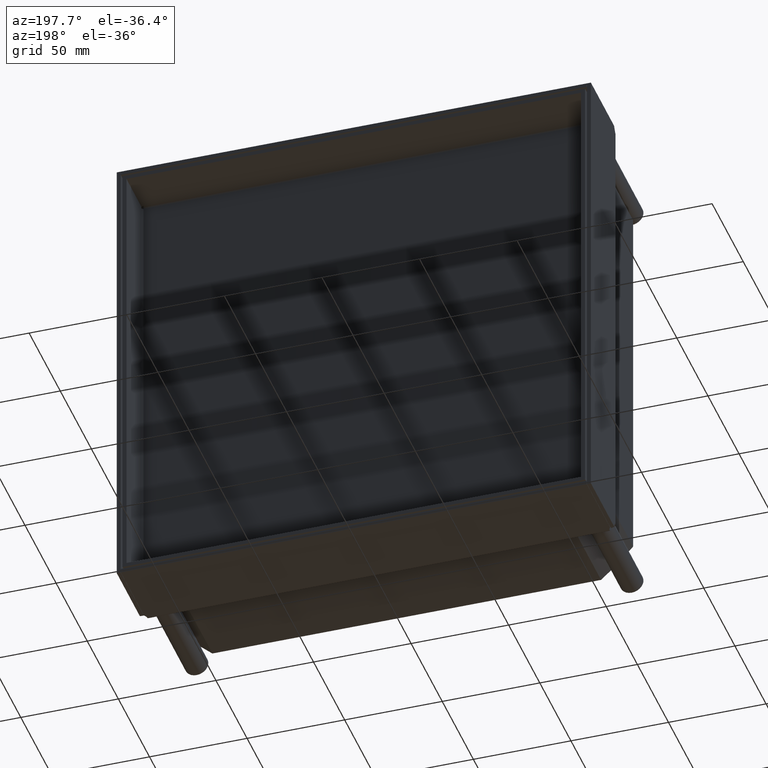
[diagram: clean part render]
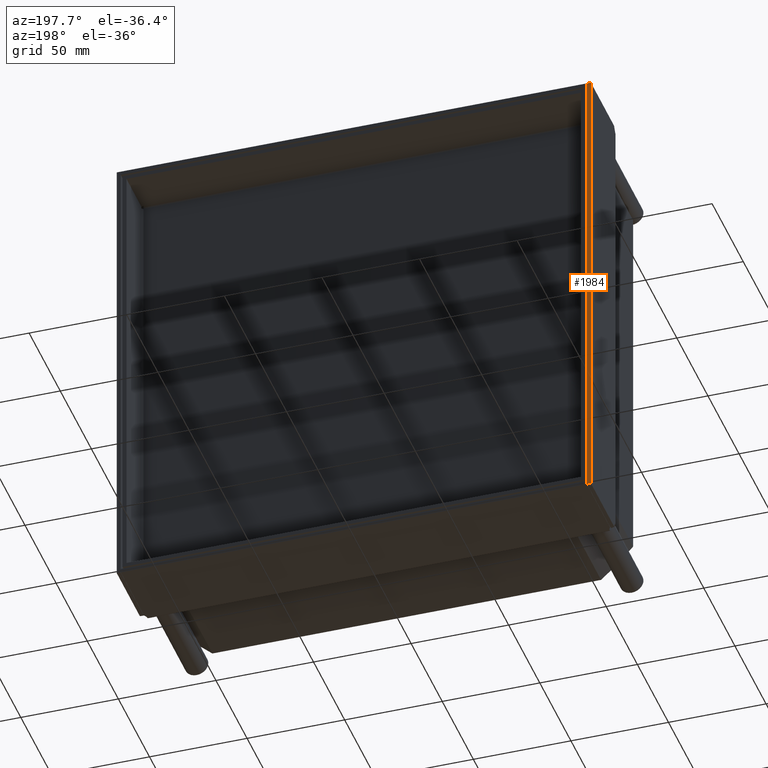
[diagram: same view with one face highlighted and labeled with its STEP entity id]
A machine part, auxiliary view. The second image highlights one B-rep face of the part: STEP entity #1984.
In plain terms, the highlighted planar face has unit normal (0, 1, 0).
Its self-contained STEP definition (entity closure, byte-faithful):
#1017=DIRECTION('',(0.E0,0.E0,1.E0));
#1018=VECTOR('',#1017,2.43E2);
#1019=CARTESIAN_POINT('',(-1.195E2,4.2E1,-1.215E2));
#1020=LINE('',#1019,#1018);
#1024=DIRECTION('',(1.E0,0.E0,0.E0));
#1025=VECTOR('',#1024,2.E0);
#1026=CARTESIAN_POINT('',(-1.215E2,4.2E1,1.215E2));
#1027=LINE('',#1026,#1025);
#1031=DIRECTION('',(0.E0,0.E0,-1.E0));
#1032=VECTOR('',#1031,2.43E2);
#1033=CARTESIAN_POINT('',(-1.215E2,4.2E1,1.215E2));
#1034=LINE('',#1033,#1032);
#1038=DIRECTION('',(1.E0,0.E0,0.E0));
#1039=VECTOR('',#1038,2.E0);
#1040=CARTESIAN_POINT('',(-1.215E2,4.2E1,-1.215E2));
#1041=LINE('',#1040,#1039);
#1133=CARTESIAN_POINT('',(-1.215E2,4.2E1,-1.215E2));
#1135=VERTEX_POINT('',#1133);
#1139=CARTESIAN_POINT('',(-1.195E2,4.2E1,-1.215E2));
#1141=VERTEX_POINT('',#1139);
#1161=CARTESIAN_POINT('',(-1.215E2,4.2E1,1.215E2));
#1163=VERTEX_POINT('',#1161);
#1167=CARTESIAN_POINT('',(-1.195E2,4.2E1,1.215E2));
#1169=VERTEX_POINT('',#1167);
#1970=CARTESIAN_POINT('',(-1.205E2,4.2E1,-6.075E1));
#1971=DIRECTION('',(0.E0,1.E0,0.E0));
#1972=DIRECTION('',(0.E0,0.E0,-1.E0));
#1973=AXIS2_PLACEMENT_3D('',#1970,#1971,#1972);
#1974=PLANE('',#1973);
#1976=ORIENTED_EDGE('',*,*,#1975,.T.);
#1978=ORIENTED_EDGE('',*,*,#1977,.F.);
#1979=ORIENTED_EDGE('',*,*,#1956,.T.);
#1981=ORIENTED_EDGE('',*,*,#1980,.T.);
#1982=EDGE_LOOP('',(#1976,#1978,#1979,#1981));
#1983=FACE_OUTER_BOUND('',#1982,.F.);
#1956=EDGE_CURVE('',#1163,#1135,#1034,.T.);
#1975=EDGE_CURVE('',#1141,#1169,#1020,.T.);
#1977=EDGE_CURVE('',#1163,#1169,#1027,.T.);
#1980=EDGE_CURVE('',#1135,#1141,#1041,.T.);
#1984=ADVANCED_FACE('',(#1983),#1974,.T.);